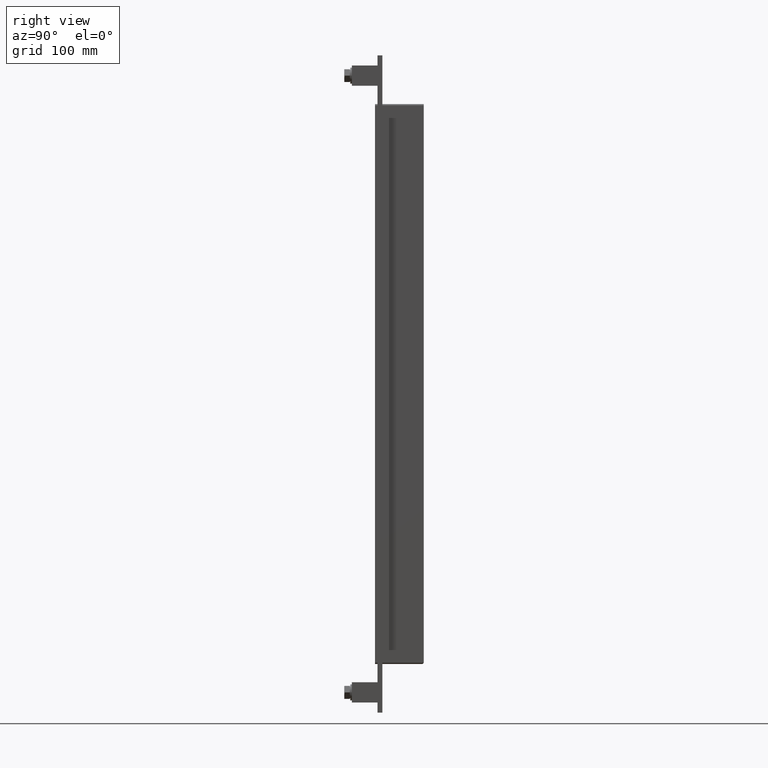
[diagram: clean part render]
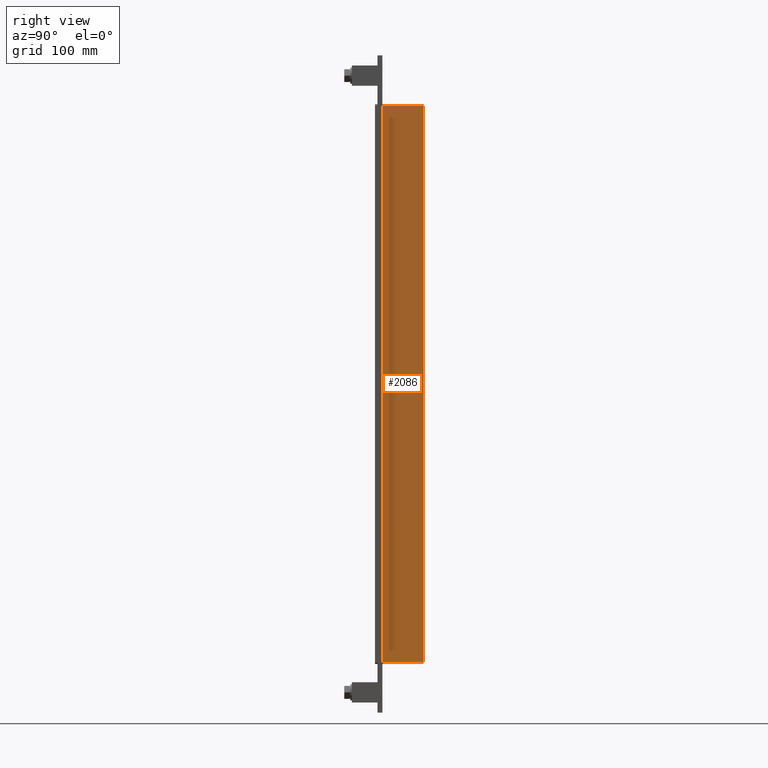
[diagram: same view with one face highlighted and labeled with its STEP entity id]
A machine part, right view. The second image highlights one B-rep face of the part: STEP entity #2086.
In plain terms, the highlighted planar face has unit normal (1, 0, 0).
Its self-contained STEP definition (entity closure, byte-faithful):
#1008=CARTESIAN_POINT('',(131.50000000000003,57.0,-343.00000000000006));
#1009=VERTEX_POINT('',#1008);
#1041=CARTESIAN_POINT('',(131.50000000000003,57.0,343.00000000000006));
#1042=VERTEX_POINT('',#1041);
#1050=CARTESIAN_POINT('',(131.50000000000003,57.0,343.0));
#1051=DIRECTION('',(0.0,0.0,-1.0));
#1052=VECTOR('',#1051,686.0);
#1053=LINE('',#1050,#1052);
#1054=EDGE_CURVE('',#1042,#1009,#1053,.T.);
#1398=CARTESIAN_POINT('',(131.50000000000003,6.000000000000001,-343.00000000000006));
#1399=VERTEX_POINT('',#1398);
#1407=CARTESIAN_POINT('',(131.50000000000003,6.000000000000001,343.00000000000006));
#1408=VERTEX_POINT('',#1407);
#1409=CARTESIAN_POINT('',(131.50000000000003,6.000000000000001,343.0));
#1410=DIRECTION('',(0.0,0.0,-1.0));
#1411=VECTOR('',#1410,686.0);
#1412=LINE('',#1409,#1411);
#1413=EDGE_CURVE('',#1408,#1399,#1412,.T.);
#1771=CARTESIAN_POINT('',(131.50000000000003,57.0,-343.00000000000006));
#1772=DIRECTION('',(0.0,-1.0,0.0));
#1773=VECTOR('',#1772,51.0);
#1774=LINE('',#1771,#1773);
#1775=EDGE_CURVE('',#1009,#1399,#1774,.T.);
#2064=CARTESIAN_POINT('',(131.50000000000003,6.000000000000001,343.00000000000006));
#2065=DIRECTION('',(0.0,1.0,0.0));
#2066=VECTOR('',#2065,51.0);
#2067=LINE('',#2064,#2066);
#2068=EDGE_CURVE('',#1408,#1042,#2067,.T.);
#2075=CARTESIAN_POINT('',(131.50000000000003,0.0,345.00000000000006));
#2076=DIRECTION('',(1.0,0.0,0.0));
#2077=DIRECTION('',(0.0,0.0,-1.0));
#2078=AXIS2_PLACEMENT_3D('',#2075,#2076,#2077);
#2079=PLANE('',#2078);
#2080=ORIENTED_EDGE('',*,*,#1413,.T.);
#2081=ORIENTED_EDGE('',*,*,#1775,.F.);
#2082=ORIENTED_EDGE('',*,*,#1054,.F.);
#2083=ORIENTED_EDGE('',*,*,#2068,.F.);
#2084=EDGE_LOOP('',(#2080,#2081,#2082,#2083));
#2085=FACE_OUTER_BOUND('',#2084,.T.);
#2086=ADVANCED_FACE('',(#2085),#2079,.T.);